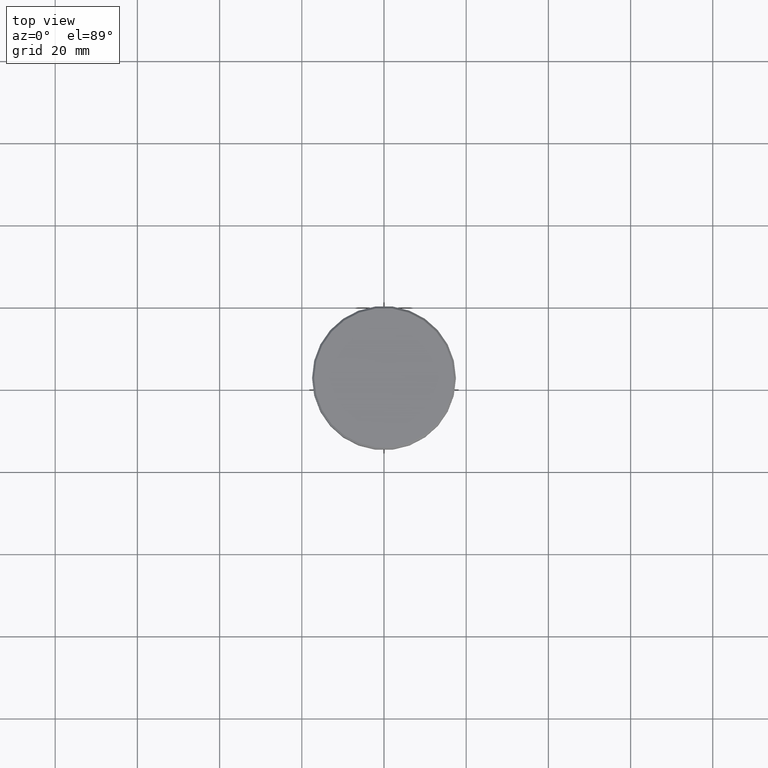
[diagram: clean part render]
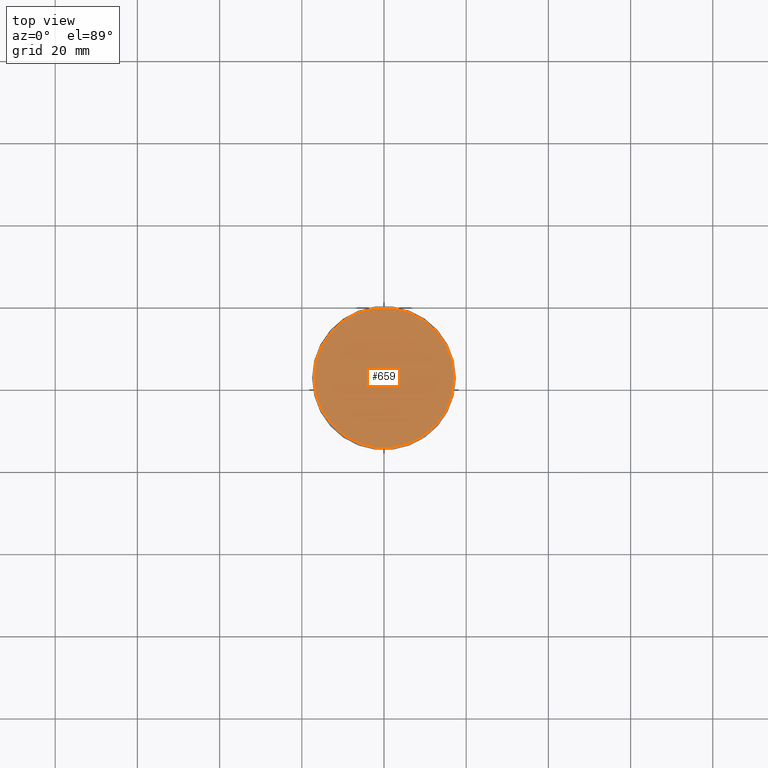
[diagram: same view with one face highlighted and labeled with its STEP entity id]
A machine part, top view. The second image highlights one B-rep face of the part: STEP entity #659.
In plain terms, the highlighted planar face has unit normal (0, -0, 1).
Its self-contained STEP definition (entity closure, byte-faithful):
#29 = FACE_OUTER_BOUND ( 'NONE', #564, .T. ) ;
#123 = PLANE ( 'NONE',  #567 ) ;
#133 = DIRECTION ( 'NONE',  ( 1.000000000000000000, 0.000000000000000000, 0.000000000000000000 ) ) ;
#192 = EDGE_CURVE ( 'NONE', #874, #745, #1152, .T. ) ;
#223 = DIRECTION ( 'NONE',  ( 0.000000000000000000, -0.000000000000000000, 1.000000000000000000 ) ) ;
#258 = AXIS2_PLACEMENT_3D ( 'NONE', #377, #1116, #133 ) ;
#293 = DIRECTION ( 'NONE',  ( 1.000000000000000000, 0.000000000000000000, 0.000000000000000000 ) ) ;
#377 = CARTESIAN_POINT ( 'NONE',  ( 0.000000000000000000, 0.000000000000000000, 0.000000000000000000 ) ) ;
#425 = CARTESIAN_POINT ( 'NONE',  ( 17.00000000000001421, 2.112515728529185250E-15, 0.000000000000000000 ) ) ;
#471 = AXIS2_PLACEMENT_3D ( 'NONE', #1149, #777, #1063 ) ;
#564 = EDGE_LOOP ( 'NONE', ( #988, #1094 ) ) ;
#567 = AXIS2_PLACEMENT_3D ( 'NONE', #684, #223, #293 ) ;
#659 = ADVANCED_FACE ( 'NONE', ( #29 ), #123, .T. ) ;
#684 = CARTESIAN_POINT ( 'NONE',  ( 0.000000000000000000, 0.000000000000000000, 0.000000000000000000 ) ) ;
#745 = VERTEX_POINT ( 'NONE', #804 ) ;
#777 = DIRECTION ( 'NONE',  ( -0.000000000000000000, -0.000000000000000000, 1.000000000000000000 ) ) ;
#804 = CARTESIAN_POINT ( 'NONE',  ( -17.00000000000001421, 0.000000000000000000, 0.000000000000000000 ) ) ;
#874 = VERTEX_POINT ( 'NONE', #425 ) ;
#896 = CIRCLE ( 'NONE', #258, 17.00000000000001421 ) ;
#988 = ORIENTED_EDGE ( 'NONE', *, *, #1070, .T. ) ;
#1063 = DIRECTION ( 'NONE',  ( 1.000000000000000000, 0.000000000000000000, 0.000000000000000000 ) ) ;
#1070 = EDGE_CURVE ( 'NONE', #745, #874, #896, .T. ) ;
#1094 = ORIENTED_EDGE ( 'NONE', *, *, #192, .T. ) ;
#1116 = DIRECTION ( 'NONE',  ( -0.000000000000000000, -0.000000000000000000, 1.000000000000000000 ) ) ;
#1149 = CARTESIAN_POINT ( 'NONE',  ( 0.000000000000000000, 0.000000000000000000, 0.000000000000000000 ) ) ;
#1152 = CIRCLE ( 'NONE', #471, 17.00000000000001421 ) ;